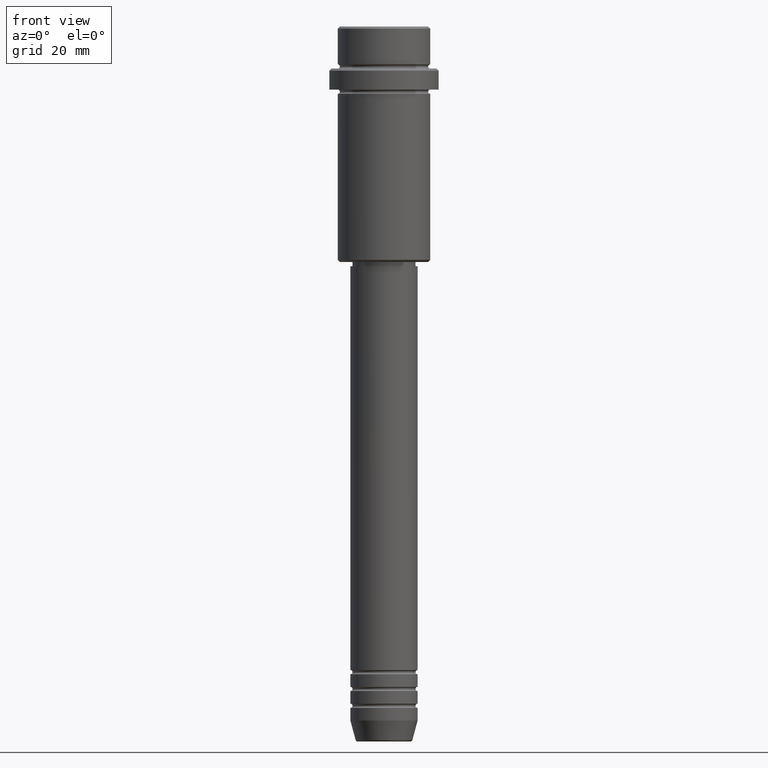
[diagram: clean part render]
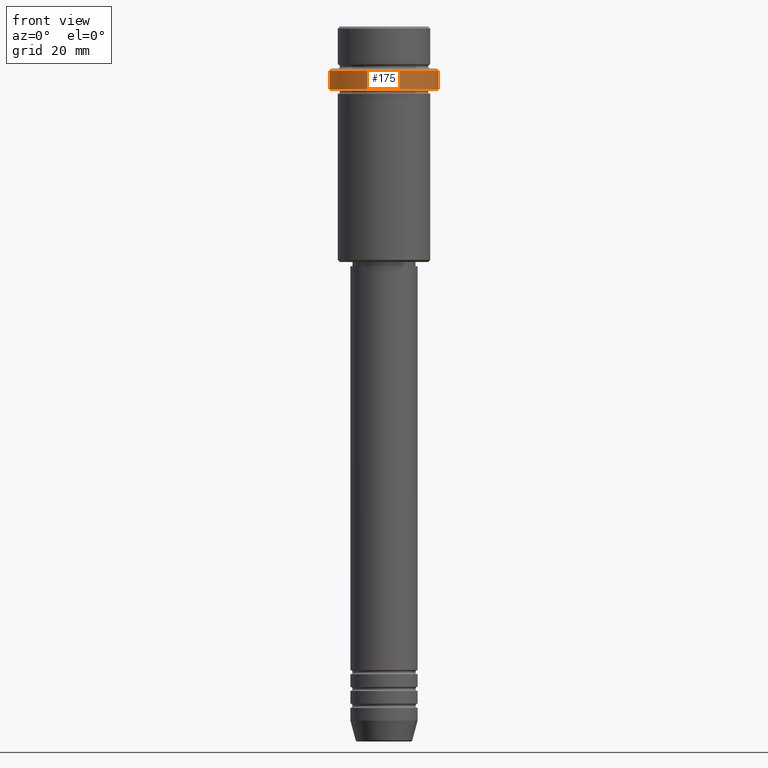
[diagram: same view with one face highlighted and labeled with its STEP entity id]
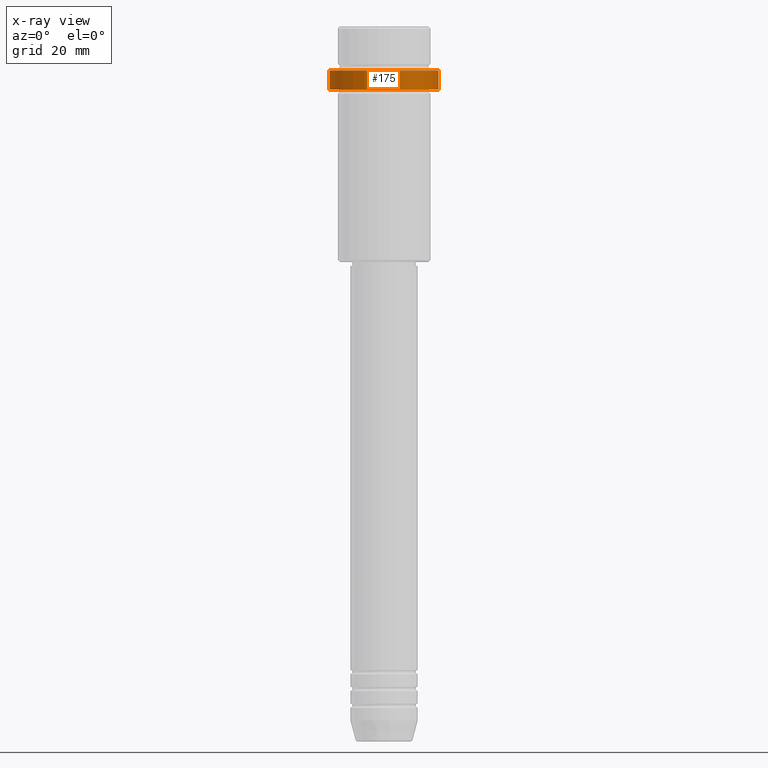
[diagram: x-ray of the same camera — body ghosted, the highlighted face saturated]
A machine part, front view. The second image highlights one B-rep face of the part: STEP entity #175.
The next image is the same camera in x-ray: the body ghosted, the highlighted face saturated — about 0% of this face is hidden behind the body in this view.
In plain terms, the highlighted cylindrical surface (partial cylindrical patch) has radius 13 mm, axis along (-0, -0, 1).
Its self-contained STEP definition (entity closure, byte-faithful):
#6 = EDGE_LOOP ( 'NONE', ( #415, #536, #1014, #117 ) ) ;
#31 = CARTESIAN_POINT ( 'NONE',  ( 13.00000000000000000, 0.000000000000000000, -10.50000000000000711 ) ) ;
#78 = VERTEX_POINT ( 'NONE', #424 ) ;
#117 = ORIENTED_EDGE ( 'NONE', *, *, #868, .T. ) ;
#158 = DIRECTION ( 'NONE',  ( -0.000000000000000000, -0.000000000000000000, 1.000000000000000000 ) ) ;
#175 = ADVANCED_FACE ( 'NONE', ( #178 ), #824, .T. ) ;
#178 = FACE_OUTER_BOUND ( 'NONE', #6, .T. ) ;
#197 = VECTOR ( 'NONE', #1117, 1000.000000000000000 ) ;
#217 = CARTESIAN_POINT ( 'NONE',  ( 13.00000000000000000, 0.000000000000000000, 0.000000000000000000 ) ) ;
#232 = DIRECTION ( 'NONE',  ( 1.000000000000000000, 0.000000000000000000, 0.000000000000000000 ) ) ;
#238 = CARTESIAN_POINT ( 'NONE',  ( -13.00000000000000000, 1.592040838891559095E-15, -15.00000000000000178 ) ) ;
#271 = AXIS2_PLACEMENT_3D ( 'NONE', #780, #895, #232 ) ;
#316 = AXIS2_PLACEMENT_3D ( 'NONE', #1256, #724, #400 ) ;
#369 = CARTESIAN_POINT ( 'NONE',  ( -13.00000000000000000, 1.592040838891559095E-15, 0.000000000000000000 ) ) ;
#374 = VERTEX_POINT ( 'NONE', #31 ) ;
#400 = DIRECTION ( 'NONE',  ( 1.000000000000000000, 0.000000000000000000, 0.000000000000000000 ) ) ;
#415 = ORIENTED_EDGE ( 'NONE', *, *, #515, .F. ) ;
#424 = CARTESIAN_POINT ( 'NONE',  ( -13.00000000000000000, 1.592040838891559095E-15, -10.50000000000000711 ) ) ;
#515 = EDGE_CURVE ( 'NONE', #938, #78, #1045, .T. ) ;
#536 = ORIENTED_EDGE ( 'NONE', *, *, #682, .T. ) ;
#682 = EDGE_CURVE ( 'NONE', #938, #1258, #964, .T. ) ;
#724 = DIRECTION ( 'NONE',  ( -0.000000000000000000, -0.000000000000000000, 1.000000000000000000 ) ) ;
#780 = CARTESIAN_POINT ( 'NONE',  ( 0.000000000000000000, 0.000000000000000000, -10.50000000000000711 ) ) ;
#824 = CYLINDRICAL_SURFACE ( 'NONE', #1100, 13.00000000000000000 ) ;
#835 = EDGE_CURVE ( 'NONE', #1258, #374, #1293, .T. ) ;
#868 = EDGE_CURVE ( 'NONE', #374, #78, #1129, .T. ) ;
#895 = DIRECTION ( 'NONE',  ( 0.000000000000000000, 0.000000000000000000, -1.000000000000000000 ) ) ;
#938 = VERTEX_POINT ( 'NONE', #238 ) ;
#964 = CIRCLE ( 'NONE', #316, 13.00000000000000000 ) ;
#1009 = VECTOR ( 'NONE', #1304, 1000.000000000000000 ) ;
#1014 = ORIENTED_EDGE ( 'NONE', *, *, #835, .T. ) ;
#1045 = LINE ( 'NONE', #369, #197 ) ;
#1100 = AXIS2_PLACEMENT_3D ( 'NONE', #1152, #158, #1259 ) ;
#1117 = DIRECTION ( 'NONE',  ( -0.000000000000000000, -0.000000000000000000, 1.000000000000000000 ) ) ;
#1129 = CIRCLE ( 'NONE', #271, 13.00000000000000000 ) ;
#1152 = CARTESIAN_POINT ( 'NONE',  ( 0.000000000000000000, 0.000000000000000000, 0.000000000000000000 ) ) ;
#1155 = CARTESIAN_POINT ( 'NONE',  ( 13.00000000000000000, 0.000000000000000000, -15.00000000000000178 ) ) ;
#1256 = CARTESIAN_POINT ( 'NONE',  ( 0.000000000000000000, 0.000000000000000000, -15.00000000000000178 ) ) ;
#1258 = VERTEX_POINT ( 'NONE', #1155 ) ;
#1259 = DIRECTION ( 'NONE',  ( 1.000000000000000000, 0.000000000000000000, 0.000000000000000000 ) ) ;
#1293 = LINE ( 'NONE', #217, #1009 ) ;
#1304 = DIRECTION ( 'NONE',  ( -0.000000000000000000, -0.000000000000000000, 1.000000000000000000 ) ) ;